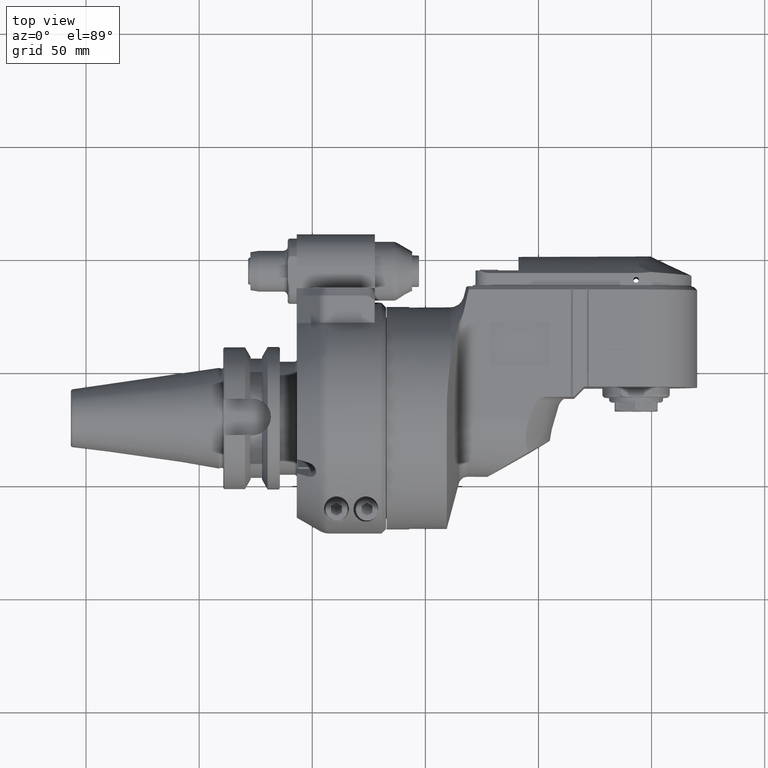
[diagram: clean part render]
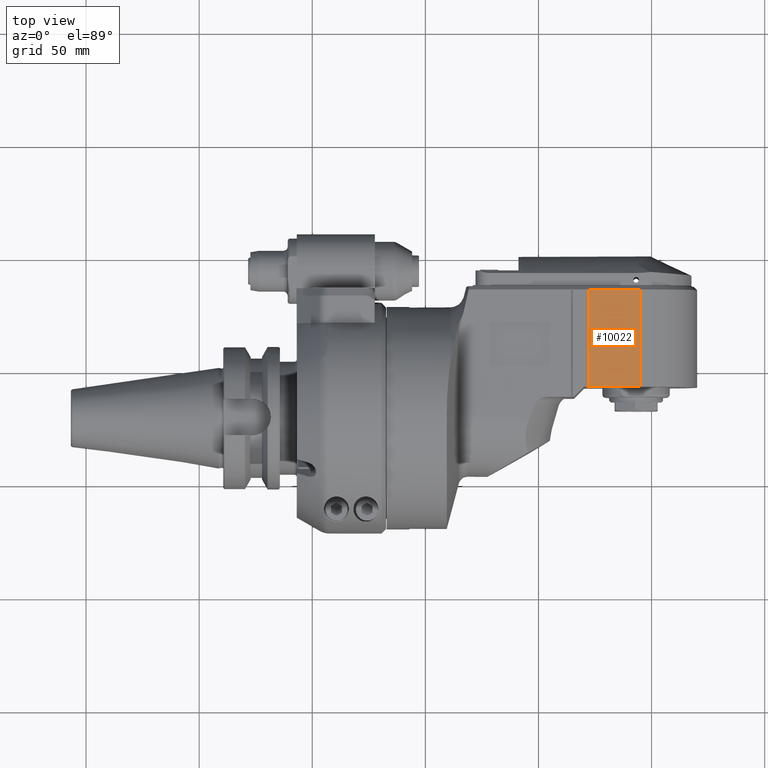
[diagram: same view with one face highlighted and labeled with its STEP entity id]
A machine part, top view. The second image highlights one B-rep face of the part: STEP entity #10022.
In plain terms, the highlighted planar face has unit normal (-0, 0, -1).
Its self-contained STEP definition (entity closure, byte-faithful):
#1037=PLANE('',#10789);
#1340=FACE_OUTER_BOUND('',#2005,.T.);
#2005=EDGE_LOOP('',(#7067,#7068,#7069,#7070));
#2878=LINE('',#15152,#3593);
#2882=LINE('',#15162,#3597);
#2911=LINE('',#15310,#3626);
#2913=LINE('',#15313,#3628);
#3593=VECTOR('',#12031,23.);
#3597=VECTOR('',#12041,43.);
#3626=VECTOR('',#12130,43.);
#3628=VECTOR('',#12134,23.);
#4368=VERTEX_POINT('',#15149);
#4369=VERTEX_POINT('',#15151);
#4372=VERTEX_POINT('',#15161);
#4398=VERTEX_POINT('',#15309);
#5392=EDGE_CURVE('',#4369,#4368,#2878,.T.);
#5397=EDGE_CURVE('',#4369,#4372,#2882,.T.);
#5443=EDGE_CURVE('',#4398,#4368,#2911,.T.);
#5445=EDGE_CURVE('',#4372,#4398,#2913,.T.);
#7067=ORIENTED_EDGE('',*,*,#5397,.F.);
#7068=ORIENTED_EDGE('',*,*,#5392,.T.);
#7069=ORIENTED_EDGE('',*,*,#5443,.F.);
#7070=ORIENTED_EDGE('',*,*,#5445,.F.);
#10022=ADVANCED_FACE('',(#1340),#1037,.F.);
#10789=AXIS2_PLACEMENT_3D('',#15312,#12132,#12133);
#12031=DIRECTION('',(-1.,0.,0.));
#12041=DIRECTION('',(0.,-1.,0.));
#12130=DIRECTION('',(0.,1.,0.));
#12132=DIRECTION('center_axis',(0.,0.,-1.));
#12133=DIRECTION('ref_axis',(1.,0.,0.));
#12134=DIRECTION('',(-1.,0.,0.));
#15149=CARTESIAN_POINT('',(77.5,56.5,26.));
#15151=CARTESIAN_POINT('',(100.5,56.5,26.));
#15152=CARTESIAN_POINT('',(100.5,56.5,26.));
#15161=CARTESIAN_POINT('',(100.5,13.5,26.));
#15162=CARTESIAN_POINT('',(100.5,56.5,26.));
#15309=CARTESIAN_POINT('',(77.5,13.5,26.));
#15310=CARTESIAN_POINT('',(77.5,13.5,26.));
#15312=CARTESIAN_POINT('Origin',(20.7320512433,-59.7040024,26.));
#15313=CARTESIAN_POINT('',(100.5,13.5,26.));